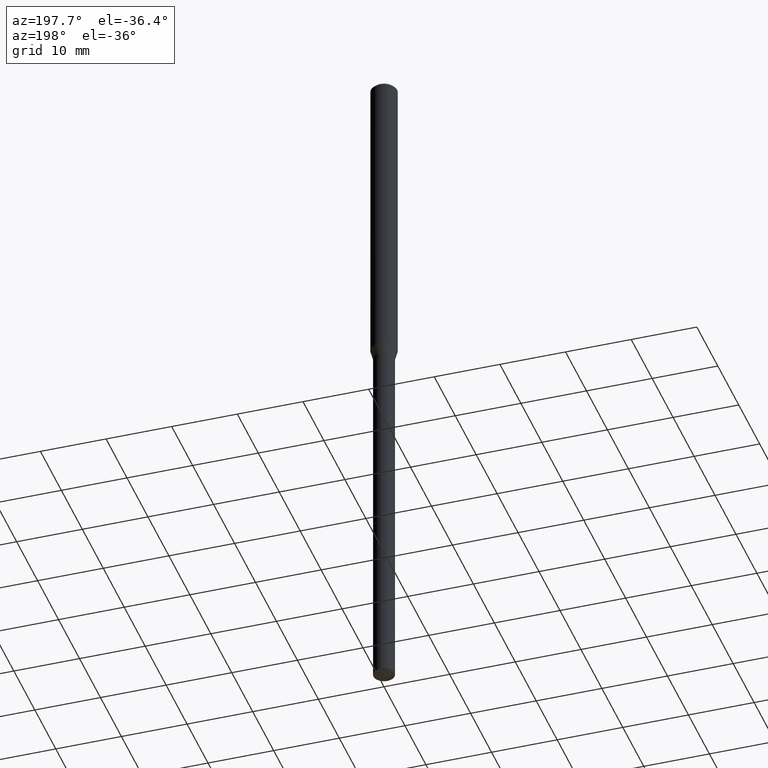
[diagram: clean part render]
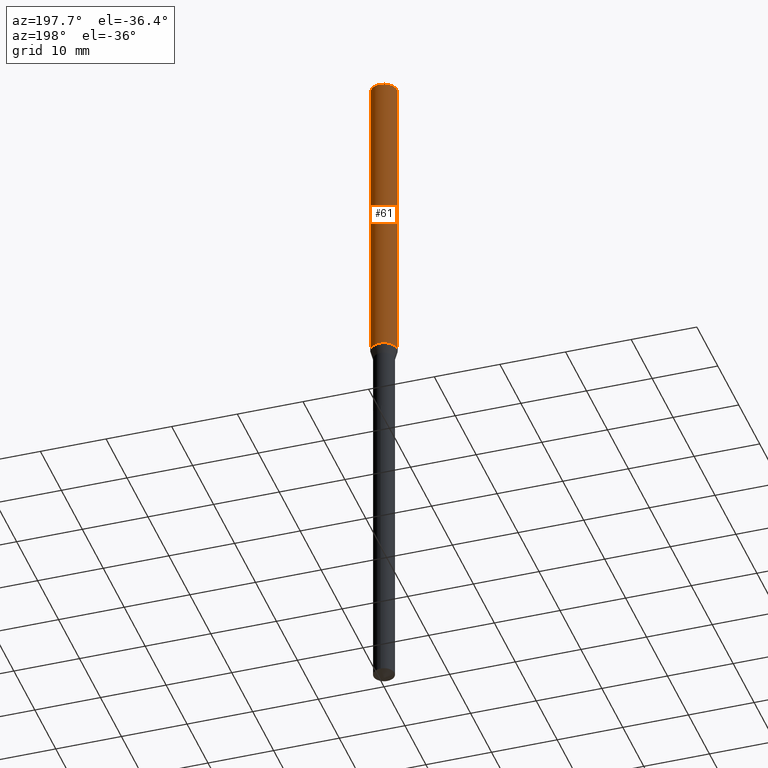
[diagram: same view with one face highlighted and labeled with its STEP entity id]
A machine part, auxiliary view. The second image highlights one B-rep face of the part: STEP entity #61.
In plain terms, the highlighted cylindrical surface (edge-blend (fillet) strip) has radius 2.0003 mm, axis along (-0, 0, 1).
Its self-contained STEP definition (entity closure, byte-faithful):
#10 = VERTEX_POINT ( 'NONE', #94 ) ;
#18 = EDGE_CURVE ( 'NONE', #139, #378, #164, .T. ) ;
#27 = CARTESIAN_POINT ( 'NONE',  ( 0.07875000000000000056, -6.048991419545733705E-16, -0.01575000000000010419 ) ) ;
#60 = DIRECTION ( 'NONE',  ( -2.445468806185136597E-29, 3.491481338843145583E-15, 1.000000000000000000 ) ) ;
#61 = ADVANCED_FACE ( 'NONE', ( #410 ), #369, .T. ) ;
#74 = LINE ( 'NONE', #188, #426 ) ;
#94 = CARTESIAN_POINT ( 'NONE',  ( -0.07875000000000023648, -5.904646673480791966E-15, -1.851420199780788867 ) ) ;
#98 = CARTESIAN_POINT ( 'NONE',  ( 3.851613369741615237E-31, -5.499083108677990156E-17, -0.01575000000000010419 ) ) ;
#99 = LINE ( 'NONE', #248, #355 ) ;
#123 = ORIENTED_EDGE ( 'NONE', *, *, #305, .T. ) ;
#133 = VERTEX_POINT ( 'NONE', #371 ) ;
#139 = VERTEX_POINT ( 'NONE', #27 ) ;
#140 = DIRECTION ( 'NONE',  ( 1.000000000000000000, -6.982962677686267499E-15, 4.876176775795936353E-29 ) ) ;
#141 = DIRECTION ( 'NONE',  ( -2.445468806185136597E-29, 3.491481338843145583E-15, 1.000000000000000000 ) ) ;
#159 = DIRECTION ( 'NONE',  ( -2.445468806185136597E-29, 3.491481338843145583E-15, 1.000000000000000000 ) ) ;
#164 = CIRCLE ( 'NONE', #223, 0.07875000000000000056 ) ;
#188 = CARTESIAN_POINT ( 'NONE',  ( 0.07875000000000011158, -5.499083108677943318E-16, 3.839989210939305322E-30 ) ) ;
#204 = EDGE_CURVE ( 'NONE', #133, #139, #74, .T. ) ;
#208 = ORIENTED_EDGE ( 'NONE', *, *, #394, .T. ) ;
#223 = AXIS2_PLACEMENT_3D ( 'NONE', #98, #60, #321 ) ;
#224 = CIRCLE ( 'NONE', #323, 0.07875000000000023648 ) ;
#227 = CARTESIAN_POINT ( 'NONE',  ( -0.07875000000000000056, -2.700042550078244672E-15, -0.01575000000000010419 ) ) ;
#238 = DIRECTION ( 'NONE',  ( -2.445468806185136877E-29, 3.491481338843145188E-15, 1.000000000000000000 ) ) ;
#248 = CARTESIAN_POINT ( 'NONE',  ( -0.07875000000000011158, 5.595524044110796892E-16, -3.873661383575744098E-30 ) ) ;
#259 = AXIS2_PLACEMENT_3D ( 'NONE', #376, #141, #140 ) ;
#305 = EDGE_CURVE ( 'NONE', #133, #10, #224, .T. ) ;
#309 = DIRECTION ( 'NONE',  ( 1.000000000000000000, -6.982962677686265133E-15, 0.000000000000000000 ) ) ;
#321 = DIRECTION ( 'NONE',  ( 1.000000000000000000, -6.982962677686265922E-15, 0.000000000000000000 ) ) ;
#323 = AXIS2_PLACEMENT_3D ( 'NONE', #341, #159, #309 ) ;
#341 = CARTESIAN_POINT ( 'NONE',  ( 4.527590345704972741E-29, -6.464199077891873134E-15, -1.851420199780788867 ) ) ;
#355 = VECTOR ( 'NONE', #238, 39.37007874015748143 ) ;
#369 = CYLINDRICAL_SURFACE ( 'NONE', #259, 0.07875000000000011158 ) ;
#371 = CARTESIAN_POINT ( 'NONE',  ( 0.07875000000000023648, -7.014107388759668057E-15, -1.851420199780788867 ) ) ;
#376 = CARTESIAN_POINT ( 'NONE',  ( 0.000000000000000000, 0.000000000000000000, 0.000000000000000000 ) ) ;
#378 = VERTEX_POINT ( 'NONE', #227 ) ;
#391 = ORIENTED_EDGE ( 'NONE', *, *, #204, .F. ) ;
#394 = EDGE_CURVE ( 'NONE', #10, #378, #99, .T. ) ;
#406 = DIRECTION ( 'NONE',  ( -2.445468806185136877E-29, 3.491481338843145188E-15, 1.000000000000000000 ) ) ;
#410 = FACE_OUTER_BOUND ( 'NONE', #423, .T. ) ;
#419 = ORIENTED_EDGE ( 'NONE', *, *, #18, .F. ) ;
#423 = EDGE_LOOP ( 'NONE', ( #123, #208, #419, #391 ) ) ;
#426 = VECTOR ( 'NONE', #406, 39.37007874015748143 ) ;